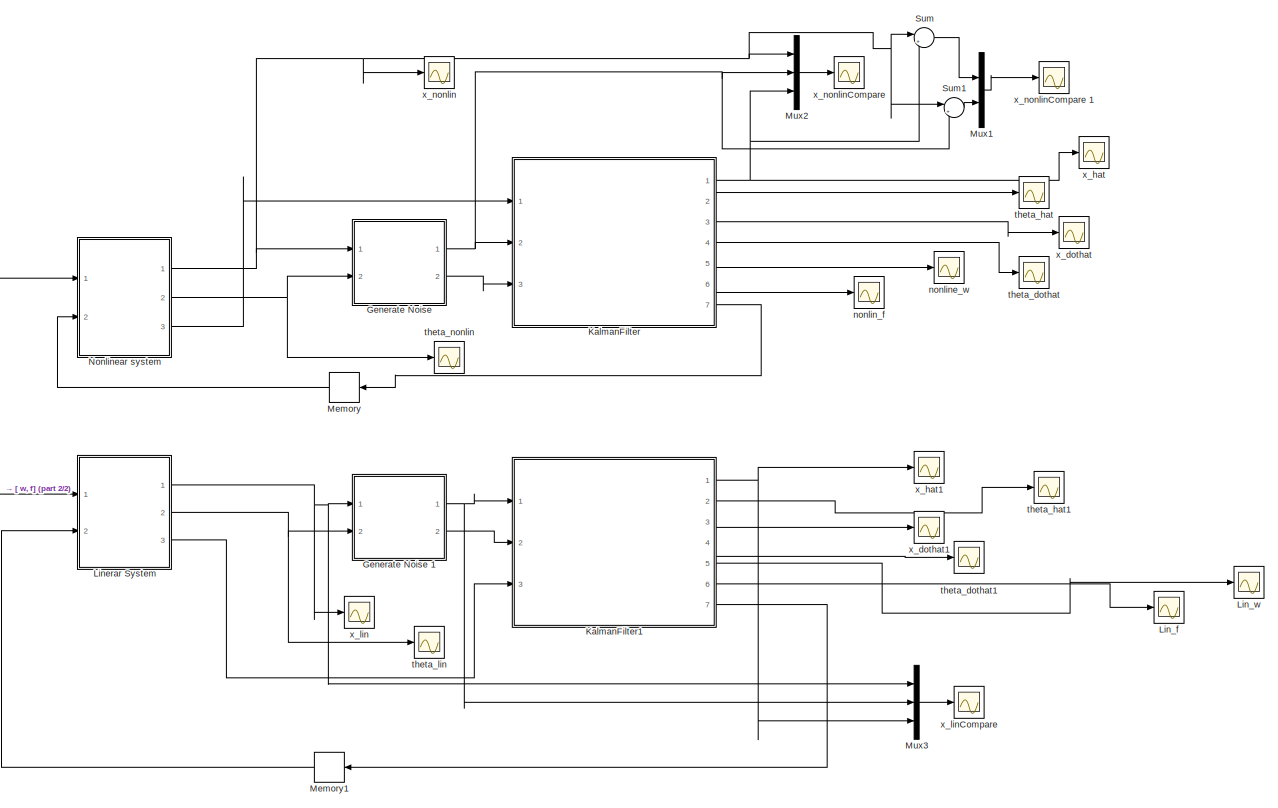
[diagram: root canvas - part 1/2, center side, full height]
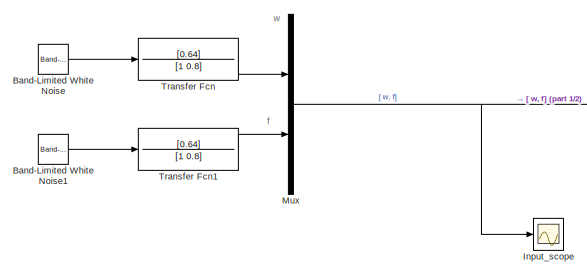
[diagram: root canvas - part 2/2, middle left region]
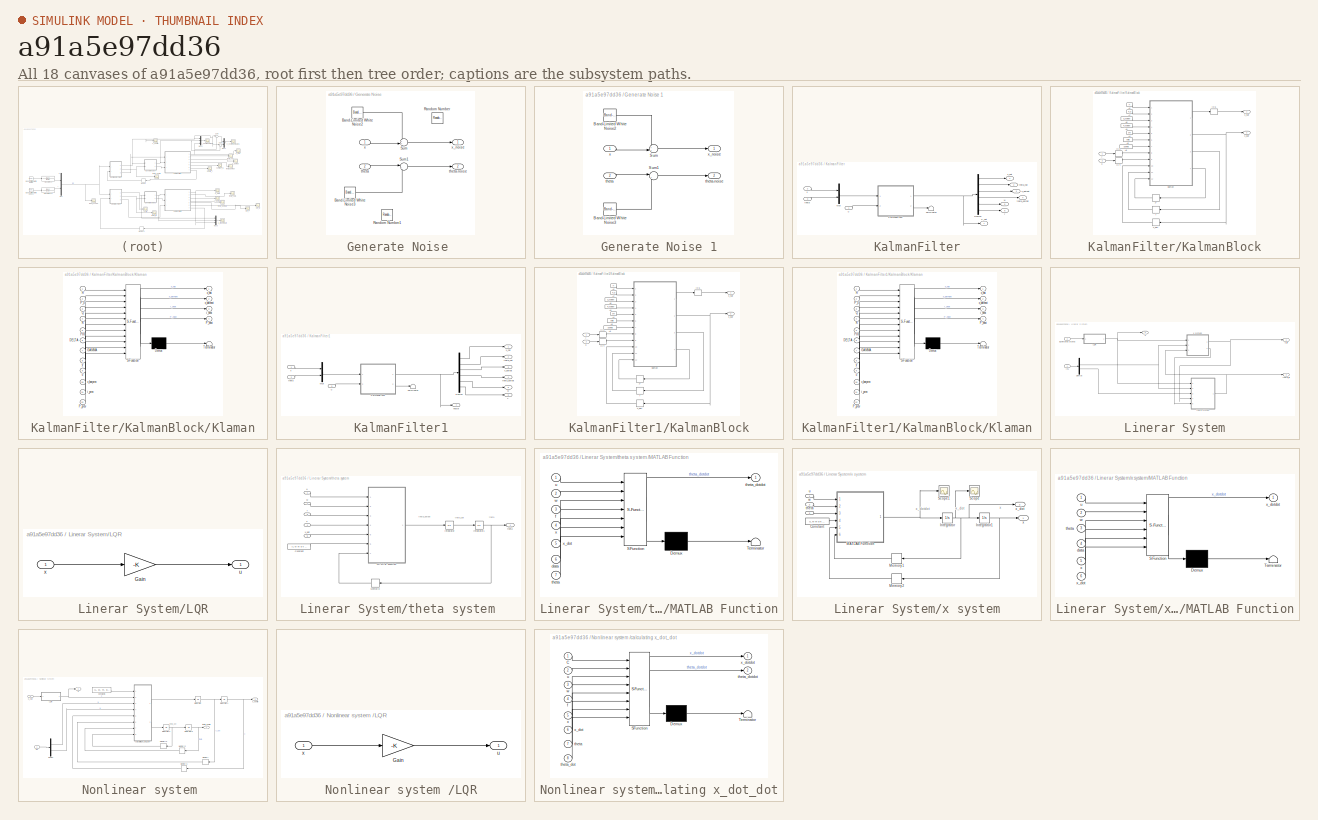
[diagram: thumbnail index - all 18 canvases of the model, root first then tree order]
MODEL slx_a91a5e97dd36
KIND model
CONFIG AbsTol = auto
CONFIG FixedStep = h
CONFIG MaxStep = auto
CONFIG MinStep = auto
CONFIG RelTol = 1e-3
CONFIG SampleTimeConstraint = Unconstrained
CONFIG Solver = ode3
CONFIG SolverMode = Auto
CONFIG SolverName = ode3
CONFIG StartTime = 0.0
CONFIG StopTime = T_max
BLOCK [Reference] Band-Limited White Noise  REF=simulink/Sources/Band-Limited
White Noise
  Cov = [10]
  Ports = [0, 1]
  SourceBlock = simulink/Sources/Band-Limited\nWhite Noise
  SourceType = Band-Limited White Noise.
  Ts = h
  VectorParams1D = on
  seed = [23343]
BLOCK [Reference] Band-Limited White Noise1  REF=simulink/Sources/Band-Limited
White Noise
  Cov = [10e-4]
  Ports = [0, 1]
  SourceBlock = simulink/Sources/Band-Limited\nWhite Noise
  SourceType = Band-Limited White Noise.
  Ts = h
  VectorParams1D = on
  seed = [23344]
BLOCK [SubSystem] Generate Noise 
  Ports = [2, 2]
  RequestExecContextInheritance = off
BLOCK [Reference] Generate Noise /Band-Limited White Noise2  REF=simulink/Sources/Band-Limited
White Noise
  Cov = [10e-7]
  Ports = [0, 1]
  SourceBlock = simulink/Sources/Band-Limited\nWhite Noise
  SourceType = Band-Limited White Noise.
  Ts = h
  VectorParams1D = on
  seed = [23342]
BLOCK [Reference] Generate Noise /Band-Limited White Noise3  REF=simulink/Sources/Band-Limited
White Noise
  Cov = [10e-7]
  Ports = [0, 1]
  SourceBlock = simulink/Sources/Band-Limited\nWhite Noise
  SourceType = Band-Limited White Noise.
  Ts = h
  VectorParams1D = on
  seed = [23341]
BLOCK [RandomNumber] Generate Noise /Random Number
  SampleTime = h
  Variance = 10e-7
BLOCK [RandomNumber] Generate Noise /Random Number1
  SampleTime = h
  Variance = 10e-7
BLOCK [Sum] Generate Noise /Sum
  IconShape = round
  InputSameDT = off
  Inputs = ++|
  OutDataTypeStr = Inherit: Inherit via internal rule
  Ports = [2, 1]
  SaturateOnIntegerOverflow = off
BLOCK [Sum] Generate Noise /Sum1
  IconShape = round
  InputSameDT = off
  Inputs = |++
  OutDataTypeStr = Inherit: Inherit via internal rule
  Ports = [2, 1]
  SaturateOnIntegerOverflow = off
BLOCK [Inport] Generate Noise /theta
  IconDisplay = Port number
  Port = 2
BLOCK [Outport] Generate Noise /theta-noise
  IconDisplay = Port number
  Port = 2
BLOCK [Inport] Generate Noise /x
  IconDisplay = Port number
BLOCK [Outport] Generate Noise /x_noise
  IconDisplay = Port number
BLOCK [SubSystem] Generate Noise 1
  Ports = [2, 2]
  RequestExecContextInheritance = off
BLOCK [Reference] Generate Noise 1/Band-Limited White Noise2  REF=simulink/Sources/Band-Limited
White Noise
  Cov = [10e-7]
  Ports = [0, 1]
  SourceBlock = simulink/Sources/Band-Limited\nWhite Noise
  SourceType = Band-Limited White Noise.
  Ts = h
  VectorParams1D = on
  seed = [23342]
BLOCK [Reference] Generate Noise 1/Band-Limited White Noise3  REF=simulink/Sources/Band-Limited
White Noise
  Cov = [10e-7]
  Ports = [0, 1]
  SourceBlock = simulink/Sources/Band-Limited\nWhite Noise
  SourceType = Band-Limited White Noise.
  Ts = h
  VectorParams1D = on
  seed = [23341]
BLOCK [Sum] Generate Noise 1/Sum
  IconShape = round
  InputSameDT = off
  Inputs = ++|
  OutDataTypeStr = Inherit: Inherit via internal rule
  Ports = [2, 1]
  SaturateOnIntegerOverflow = off
BLOCK [Sum] Generate Noise 1/Sum1
  IconShape = round
  InputSameDT = off
  Inputs = |++
  OutDataTypeStr = Inherit: Inherit via internal rule
  Ports = [2, 1]
  SaturateOnIntegerOverflow = off
BLOCK [Inport] Generate Noise 1/theta
  IconDisplay = Port number
  Port = 2
BLOCK [Outport] Generate Noise 1/theta-noise
  IconDisplay = Port number
  Port = 2
BLOCK [Inport] Generate Noise 1/x
  IconDisplay = Port number
BLOCK [Outport] Generate Noise 1/x_noise
  IconDisplay = Port number
BLOCK [Scope] Input_scope
  Floating = off
  LimitDataPoints = off
  NumInputPorts = 1
  Ports = [1]
  SaveName = ScopeData4
  ShowLegends = off
  YMax = 3
  YMin = -4
BLOCK [SubSystem] KalmanFilter
  Ports = [3, 7]
  RequestExecContextInheritance = off
BLOCK [Demux] KalmanFilter/Demux
  DisplayOption = bar
  Outputs = 6
  Ports = [1, 6]
BLOCK [SubSystem] KalmanFilter/KalmanBlock
  Ports = [2, 2]
  RequestExecContextInheritance = off
BLOCK [Constant] KalmanFilter/KalmanBlock/A2
  Value = H
BLOCK [Constant] KalmanFilter/KalmanBlock/A4
  Value = phi
BLOCK [Constant] KalmanFilter/KalmanBlock/A5
  Value = delta
BLOCK [Constant] KalmanFilter/KalmanBlock/A6
  Value = gamma
BLOCK [Constant] KalmanFilter/KalmanBlock/A7
  Value = P_0
BLOCK [Constant] KalmanFilter/KalmanBlock/A8
  Value = Q_kalman
BLOCK [Constant] KalmanFilter/KalmanBlock/A9
  Value = R_kalman
BLOCK [InitialCondition] KalmanFilter/KalmanBlock/IC3
  Value = y_0
BLOCK [InitialCondition] KalmanFilter/KalmanBlock/IC4
  Value = 0
BLOCK [InitialCondition] KalmanFilter/KalmanBlock/IC5
  Value = X_0
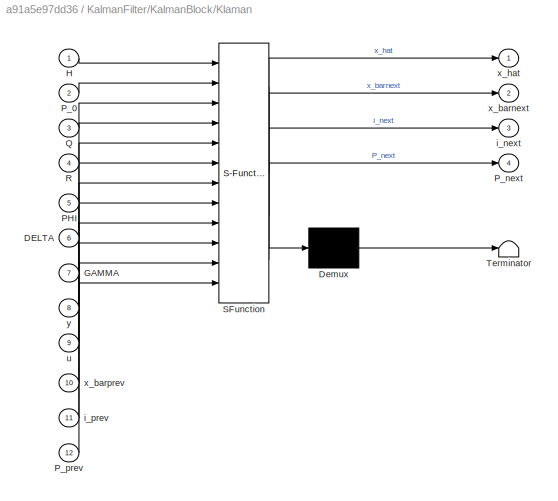
BLOCK [SubSystem] KalmanFilter/KalmanBlock/Klaman
  ErrorFcn = Stateflow.Translate.translate
  PermitHierarchicalResolution = ExplicitOnly
  Ports = [12, 4]
  RequestExecContextInheritance = off
  SFBlockType = MATLAB Function
  TreatAsAtomicUnit = on
BLOCK [Demux] KalmanFilter/KalmanBlock/Klaman/ Demux 
  Outputs = 1
  Ports = [1, 1]
BLOCK [S-Function] KalmanFilter/KalmanBlock/Klaman/ SFunction 
  EnableBusSupport = on
  FunctionName = sf_sfun
  PortCounts = [12 5]
  Ports = [12, 5]
  Tag = Stateflow S-Function Model 2
BLOCK [Terminator] KalmanFilter/KalmanBlock/Klaman/ Terminator 
BLOCK [Inport] KalmanFilter/KalmanBlock/Klaman/DELTA
  IconDisplay = Port number
  Port = 6
BLOCK [Inport] KalmanFilter/KalmanBlock/Klaman/GAMMA
  IconDisplay = Port number
  Port = 7
BLOCK [Inport] KalmanFilter/KalmanBlock/Klaman/H
  IconDisplay = Port number
BLOCK [Inport] KalmanFilter/KalmanBlock/Klaman/PHI
  IconDisplay = Port number
  Port = 5
BLOCK [Inport] KalmanFilter/KalmanBlock/Klaman/P_0
  IconDisplay = Port number
  Port = 2
BLOCK [Outport] KalmanFilter/KalmanBlock/Klaman/P_next
  IconDisplay = Port number
  Port = 4
BLOCK [Inport] KalmanFilter/KalmanBlock/Klaman/P_prev
  IconDisplay = Port number
  Port = 12
BLOCK [Inport] KalmanFilter/KalmanBlock/Klaman/Q
  IconDisplay = Port number
  Port = 3
BLOCK [Inport] KalmanFilter/KalmanBlock/Klaman/R
  IconDisplay = Port number
  Port = 4
BLOCK [Outport] KalmanFilter/KalmanBlock/Klaman/i_next
  IconDisplay = Port number
  Port = 3
BLOCK [Inport] KalmanFilter/KalmanBlock/Klaman/i_prev
  IconDisplay = Port number
  Port = 11
BLOCK [Inport] KalmanFilter/KalmanBlock/Klaman/u
  IconDisplay = Port number
  Port = 9
BLOCK [Outport] KalmanFilter/KalmanBlock/Klaman/x_barnext
  IconDisplay = Port number
  Port = 2
BLOCK [Inport] KalmanFilter/KalmanBlock/Klaman/x_barprev
  IconDisplay = Port number
  Port = 10
BLOCK [Outport] KalmanFilter/KalmanBlock/Klaman/x_hat
  IconDisplay = Port number
BLOCK [Inport] KalmanFilter/KalmanBlock/Klaman/y
  IconDisplay = Port number
  Port = 8
BLOCK [Memory] KalmanFilter/KalmanBlock/P
  X0 = P_0
BLOCK [Memory] KalmanFilter/KalmanBlock/i 
BLOCK [Inport] KalmanFilter/KalmanBlock/u 
  IconDisplay = Port number
  Port = 2
BLOCK [Outport] KalmanFilter/KalmanBlock/x_bar
  IconDisplay = Port number
  Port = 2
BLOCK [Memory] KalmanFilter/KalmanBlock/x_bar'
  X0 = X_0
BLOCK [Outport] KalmanFilter/KalmanBlock/x_hat
  IconDisplay = Port number
BLOCK [Inport] KalmanFilter/KalmanBlock/y 
  IconDisplay = Port number
BLOCK [Mux] KalmanFilter/Mux
  DisplayOption = bar
  Inputs = 2
  Ports = [2, 1]
BLOCK [Terminator] KalmanFilter/Terminator
BLOCK [Outport] KalmanFilter/X_hat
  IconDisplay = Port number
  Port = 7
BLOCK [Outport] KalmanFilter/f
  IconDisplay = Port number
  Port = 6
BLOCK [Inport] KalmanFilter/theta
  IconDisplay = Port number
  Port = 3
BLOCK [Outport] KalmanFilter/theta_dothat
  IconDisplay = Port number
  Port = 4
BLOCK [Outport] KalmanFilter/theta_hat
  IconDisplay = Port number
  Port = 2
BLOCK [Inport] KalmanFilter/u 
  IconDisplay = Port number
BLOCK [Outport] KalmanFilter/w
  IconDisplay = Port number
  Port = 5
BLOCK [Inport] KalmanFilter/x
  IconDisplay = Port number
  Port = 2
BLOCK [Outport] KalmanFilter/x_dothat
  IconDisplay = Port number
  Port = 3
BLOCK [Outport] KalmanFilter/x_hat
  IconDisplay = Port number
BLOCK [SubSystem] KalmanFilter1
  Ports = [3, 7]
  RequestExecContextInheritance = off
BLOCK [Demux] KalmanFilter1/Demux
  DisplayOption = bar
  Outputs = 6
  Ports = [1, 6]
BLOCK [SubSystem] KalmanFilter1/KalmanBlock
  Ports = [2, 2]
  RequestExecContextInheritance = off
BLOCK [Constant] KalmanFilter1/KalmanBlock/A2
  Value = H
BLOCK [Constant] KalmanFilter1/KalmanBlock/A4
  Value = phi
BLOCK [Constant] KalmanFilter1/KalmanBlock/A5
  Value = delta
BLOCK [Constant] KalmanFilter1/KalmanBlock/A6
  Value = gamma
BLOCK [Constant] KalmanFilter1/KalmanBlock/A7
  Value = P_0
BLOCK [Constant] KalmanFilter1/KalmanBlock/A8
  Value = Q_kalman
BLOCK [Constant] KalmanFilter1/KalmanBlock/A9
  Value = R_kalman
BLOCK [InitialCondition] KalmanFilter1/KalmanBlock/IC3
  Value = y_0
BLOCK [InitialCondition] KalmanFilter1/KalmanBlock/IC4
  Value = 0
BLOCK [InitialCondition] KalmanFilter1/KalmanBlock/IC5
  Value = X_0
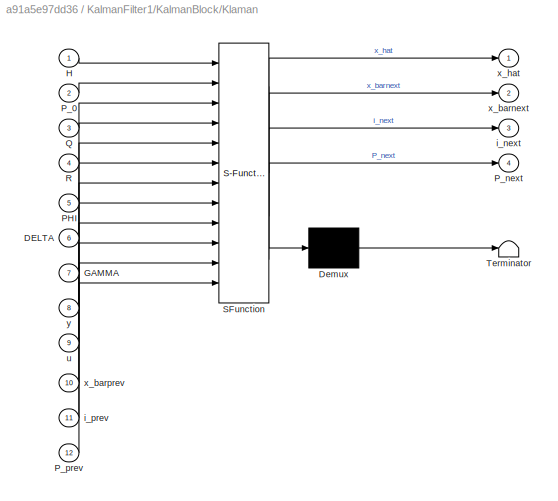
BLOCK [SubSystem] KalmanFilter1/KalmanBlock/Klaman
  ErrorFcn = Stateflow.Translate.translate
  PermitHierarchicalResolution = ExplicitOnly
  Ports = [12, 4]
  RequestExecContextInheritance = off
  SFBlockType = MATLAB Function
  TreatAsAtomicUnit = on
BLOCK [Demux] KalmanFilter1/KalmanBlock/Klaman/ Demux 
  Outputs = 1
  Ports = [1, 1]
BLOCK [S-Function] KalmanFilter1/KalmanBlock/Klaman/ SFunction 
  EnableBusSupport = on
  FunctionName = sf_sfun
  PortCounts = [12 5]
  Ports = [12, 5]
  Tag = Stateflow S-Function Model 5
BLOCK [Terminator] KalmanFilter1/KalmanBlock/Klaman/ Terminator 
BLOCK [Inport] KalmanFilter1/KalmanBlock/Klaman/DELTA
  IconDisplay = Port number
  Port = 6
BLOCK [Inport] KalmanFilter1/KalmanBlock/Klaman/GAMMA
  IconDisplay = Port number
  Port = 7
BLOCK [Inport] KalmanFilter1/KalmanBlock/Klaman/H
  IconDisplay = Port number
BLOCK [Inport] KalmanFilter1/KalmanBlock/Klaman/PHI
  IconDisplay = Port number
  Port = 5
BLOCK [Inport] KalmanFilter1/KalmanBlock/Klaman/P_0
  IconDisplay = Port number
  Port = 2
BLOCK [Outport] KalmanFilter1/KalmanBlock/Klaman/P_next
  IconDisplay = Port number
  Port = 4
BLOCK [Inport] KalmanFilter1/KalmanBlock/Klaman/P_prev
  IconDisplay = Port number
  Port = 12
BLOCK [Inport] KalmanFilter1/KalmanBlock/Klaman/Q
  IconDisplay = Port number
  Port = 3
BLOCK [Inport] KalmanFilter1/KalmanBlock/Klaman/R
  IconDisplay = Port number
  Port = 4
BLOCK [Outport] KalmanFilter1/KalmanBlock/Klaman/i_next
  IconDisplay = Port number
  Port = 3
BLOCK [Inport] KalmanFilter1/KalmanBlock/Klaman/i_prev
  IconDisplay = Port number
  Port = 11
BLOCK [Inport] KalmanFilter1/KalmanBlock/Klaman/u
  IconDisplay = Port number
  Port = 9
BLOCK [Outport] KalmanFilter1/KalmanBlock/Klaman/x_barnext
  IconDisplay = Port number
  Port = 2
BLOCK [Inport] KalmanFilter1/KalmanBlock/Klaman/x_barprev
  IconDisplay = Port number
  Port = 10
BLOCK [Outport] KalmanFilter1/KalmanBlock/Klaman/x_hat
  IconDisplay = Port number
BLOCK [Inport] KalmanFilter1/KalmanBlock/Klaman/y
  IconDisplay = Port number
  Port = 8
BLOCK [Memory] KalmanFilter1/KalmanBlock/P
  X0 = P_0
BLOCK [Memory] KalmanFilter1/KalmanBlock/i 
BLOCK [Inport] KalmanFilter1/KalmanBlock/u 
  IconDisplay = Port number
  Port = 2
BLOCK [Outport] KalmanFilter1/KalmanBlock/x_bar
  IconDisplay = Port number
  Port = 2
BLOCK [Memory] KalmanFilter1/KalmanBlock/x_bar'
  X0 = X_0
BLOCK [Outport] KalmanFilter1/KalmanBlock/x_hat
  IconDisplay = Port number
BLOCK [Inport] KalmanFilter1/KalmanBlock/y 
  IconDisplay = Port number
BLOCK [Mux] KalmanFilter1/Mux
  DisplayOption = bar
  Inputs = 2
  Ports = [2, 1]
BLOCK [Terminator] KalmanFilter1/Terminator
BLOCK [Outport] KalmanFilter1/f'
  IconDisplay = Port number
  Port = 6
BLOCK [Inport] KalmanFilter1/theta
  IconDisplay = Port number
  Port = 2
BLOCK [Outport] KalmanFilter1/theta_dothat
  IconDisplay = Port number
  Port = 4
BLOCK [Outport] KalmanFilter1/theta_hat
  IconDisplay = Port number
  Port = 2
BLOCK [Inport] KalmanFilter1/u 
  IconDisplay = Port number
  Port = 3
BLOCK [Outport] KalmanFilter1/vector
  IconDisplay = Port number
  Port = 7
BLOCK [Outport] KalmanFilter1/w
  IconDisplay = Port number
  Port = 5
BLOCK [Inport] KalmanFilter1/x
  IconDisplay = Port number
BLOCK [Outport] KalmanFilter1/x_dothat
  IconDisplay = Port number
  Port = 3
BLOCK [Outport] KalmanFilter1/x_hat
  IconDisplay = Port number
BLOCK [Scope] Lin_f
  Floating = off
  LimitDataPoints = off
  NumInputPorts = 1
  Ports = [1]
  SaveName = ScopeData9
  ShowLegends = off
BLOCK [Scope] Lin_w
  Floating = off
  LimitDataPoints = off
  NumInputPorts = 1
  Ports = [1]
  SaveName = ScopeData10
  ShowLegends = off
BLOCK [SubSystem] Linerar System
  Ports = [2, 3]
  RequestExecContextInheritance = off
BLOCK [Demux] Linerar System/Demux
  DisplayOption = bar
  Outputs = 2
  Ports = [1, 2]
BLOCK [Inport] Linerar System/Estimated states
  IconDisplay = Port number
  Port = 2
BLOCK [Inport] Linerar System/In1
  IconDisplay = Port number
BLOCK [SubSystem] Linerar System/LQR
  Ports = [1, 1]
  RequestExecContextInheritance = off
BLOCK [Gain] Linerar System/LQR/Gain
  Gain = -K
  Multiplication = Matrix(K*u)
  OutDataTypeStr = Inherit: Inherit via internal rule
  ParamDataTypeStr = Inherit: Inherit via internal rule
  SaturateOnIntegerOverflow = off
BLOCK [Outport] Linerar System/LQR/u
  IconDisplay = Port number
BLOCK [Inport] Linerar System/LQR/x
  IconDisplay = Port number
BLOCK [SubSystem] Linerar System/theta system 
  Ports = [5, 1]
  RequestExecContextInheritance = off
BLOCK [Constant] Linerar System/theta system /Constant
  SampleTime = 0.01
  Value = [L M m b k g]
  VectorParams1D = off
BLOCK [Integrator] Linerar System/theta system /Integrator
  Ports = [1, 1]
BLOCK [Integrator] Linerar System/theta system /Integrator1
  Ports = [1, 1]
BLOCK [SubSystem] Linerar System/theta system /MATLAB Function
  ErrorFcn = Stateflow.Translate.translate
  PermitHierarchicalResolution = ExplicitOnly
  Ports = [7, 1]
  RequestExecContextInheritance = off
  SFBlockType = MATLAB Function
  TreatAsAtomicUnit = on
BLOCK [Demux] Linerar System/theta system /MATLAB Function/ Demux 
  Outputs = 1
  Ports = [1, 1]
BLOCK [S-Function] Linerar System/theta system /MATLAB Function/ SFunction 
  EnableBusSupport = on
  FunctionName = sf_sfun
  PortCounts = [7 2]
  Ports = [7, 2]
  Tag = Stateflow S-Function Model 3
BLOCK [Terminator] Linerar System/theta system /MATLAB Function/ Terminator 
BLOCK [Inport] Linerar System/theta system /MATLAB Function/data
  IconDisplay = Port number
  Port = 6
BLOCK [Inport] Linerar System/theta system /MATLAB Function/f
  IconDisplay = Port number
  Port = 3
BLOCK [Inport] Linerar System/theta system /MATLAB Function/theta
  IconDisplay = Port number
  Port = 7
BLOCK [Outport] Linerar System/theta system /MATLAB Function/theta_dotdot
  IconDisplay = Port number
BLOCK [Inport] Linerar System/theta system /MATLAB Function/u
  IconDisplay = Port number
BLOCK [Inport] Linerar System/theta system /MATLAB Function/w
  IconDisplay = Port number
  Port = 2
BLOCK [Inport] Linerar System/theta system /MATLAB Function/x
  IconDisplay = Port number
  Port = 4
BLOCK [Inport] Linerar System/theta system /MATLAB Function/x_dot
  IconDisplay = Port number
  Port = 5
BLOCK [Memory] Linerar System/theta system /Memory2
  X0 = theta_0
BLOCK [Inport] Linerar System/theta system /f
  IconDisplay = Port number
  Port = 3
BLOCK [Outport] Linerar System/theta system /theta
  IconDisplay = Port number
BLOCK [Inport] Linerar System/theta system /u 
  IconDisplay = Port number
BLOCK [Inport] Linerar System/theta system /w
  IconDisplay = Port number
  Port = 2
BLOCK [Inport] Linerar System/theta system /x
  IconDisplay = Port number
  Port = 4
BLOCK [Inport] Linerar System/theta system /x_dot
  IconDisplay = Port number
  Port = 5
BLOCK [Outport] Linerar System/theta_lin
  IconDisplay = Port number
  Port = 2
BLOCK [Outport] Linerar System/u
  IconDisplay = Port number
  Port = 3
BLOCK [SubSystem] Linerar System/x system
  Ports = [3, 2]
  RequestExecContextInheritance = off
BLOCK [Constant] Linerar System/x system/Constant
  SampleTime = 0.01
  Value = [L M m b k g]
  VectorParams1D = off
BLOCK [Integrator] Linerar System/x system/Integrator
  Ports = [1, 1]
BLOCK [Integrator] Linerar System/x system/Integrator1
  Ports = [1, 1]
BLOCK [SubSystem] Linerar System/x system/MATLAB Function
  ErrorFcn = Stateflow.Translate.translate
  PermitHierarchicalResolution = ExplicitOnly
  Ports = [6, 1]
  RequestExecContextInheritance = off
  SFBlockType = MATLAB Function
  TreatAsAtomicUnit = on
BLOCK [Demux] Linerar System/x system/MATLAB Function/ Demux 
  Outputs = 1
  Ports = [1, 1]
BLOCK [S-Function] Linerar System/x system/MATLAB Function/ SFunction 
  EnableBusSupport = on
  FunctionName = sf_sfun
  PortCounts = [6 2]
  Ports = [6, 2]
  Tag = Stateflow S-Function Model 1
BLOCK [Terminator] Linerar System/x system/MATLAB Function/ Terminator 
BLOCK [Inport] Linerar System/x system/MATLAB Function/data
  IconDisplay = Port number
  Port = 4
BLOCK [Inport] Linerar System/x system/MATLAB Function/theta
  IconDisplay = Port number
  Port = 3
BLOCK [Inport] Linerar System/x system/MATLAB Function/u
  IconDisplay = Port number
BLOCK [Inport] Linerar System/x system/MATLAB Function/w
  IconDisplay = Port number
  Port = 2
BLOCK [Inport] Linerar System/x system/MATLAB Function/x
  IconDisplay = Port number
  Port = 5
BLOCK [Inport] Linerar System/x system/MATLAB Function/x_dot
  IconDisplay = Port number
  Port = 6
BLOCK [Outport] Linerar System/x system/MATLAB Function/x_dotdot
  IconDisplay = Port number
BLOCK [Memory] Linerar System/x system/Memory1
  X0 = x_dot0
BLOCK [Memory] Linerar System/x system/Memory2
  X0 = x_0
BLOCK [Scope] Linerar System/x system/Scope
  Floating = off
  NumInputPorts = 1
  Ports = [1]
  ShowLegends = off
BLOCK [Scope] Linerar System/x system/Scope1
  Floating = off
  NumInputPorts = 1
  Ports = [1]
  ShowLegends = off
BLOCK [Inport] Linerar System/x system/theta
  IconDisplay = Port number
  Port = 3
BLOCK [Inport] Linerar System/x system/u 
  IconDisplay = Port number
BLOCK [Inport] Linerar System/x system/w
  IconDisplay = Port number
  Port = 2
BLOCK [Outport] Linerar System/x system/x
  IconDisplay = Port number
BLOCK [Outport] Linerar System/x system/x_dot
  IconDisplay = Port number
  Port = 2
BLOCK [Outport] Linerar System/x_lin
  IconDisplay = Port number
BLOCK [Memory] Memory
  X0 = X_0
BLOCK [Memory] Memory1
  X0 = X_0
BLOCK [Mux] Mux
  DisplayOption = bar
  Inputs = 2
  Ports = [2, 1]
BLOCK [Mux] Mux1
  DisplayOption = bar
  Inputs = 2
  Ports = [2, 1]
BLOCK [Mux] Mux2
  DisplayOption = bar
  Inputs = 3
  Ports = [3, 1]
BLOCK [Mux] Mux3
  DisplayOption = bar
  Inputs = 3
  Ports = [3, 1]
BLOCK [SubSystem] Nonlinear system 
  Ports = [2, 3]
  RequestExecContextInheritance = off
BLOCK [Constant] Nonlinear system /Constant1
  SampleTime = 0.01
  Value = [L, M, m, b, k, g]
BLOCK [Demux] Nonlinear system /Demux
  DisplayOption = bar
  Outputs = 2
  Ports = [1, 2]
BLOCK [Inport] Nonlinear system /In1
  IconDisplay = Port number
BLOCK [Integrator] Nonlinear system /Integrator
  Ports = [1, 1]
BLOCK [Integrator] Nonlinear system /Integrator1
  Ports = [1, 1]
BLOCK [Integrator] Nonlinear system /Integrator4
  Ports = [1, 1]
BLOCK [Integrator] Nonlinear system /Integrator5
  Ports = [1, 1]
BLOCK [SubSystem] Nonlinear system /LQR
  Ports = [1, 1]
  RequestExecContextInheritance = off
BLOCK [Gain] Nonlinear system /LQR/Gain
  Gain = -K
  Multiplication = Matrix(K*u)
  OutDataTypeStr = Inherit: Inherit via internal rule
  ParamDataTypeStr = Inherit: Inherit via internal rule
  SaturateOnIntegerOverflow = off
BLOCK [Outport] Nonlinear system /LQR/u
  IconDisplay = Port number
BLOCK [Inport] Nonlinear system /LQR/x
  IconDisplay = Port number
BLOCK [Memory] Nonlinear system /Memory
  X0 = x_dot0
BLOCK [Memory] Nonlinear system /Memory1
  X0 = x_0
BLOCK [Memory] Nonlinear system /Memory2
  X0 = theta_0
BLOCK [Memory] Nonlinear system /Memory3
  X0 = theta_dot0
BLOCK [SubSystem] Nonlinear system /calculating x_dot_dot
  ErrorFcn = Stateflow.Translate.translate
  PermitHierarchicalResolution = ExplicitOnly
  Ports = [8, 2]
  RequestExecContextInheritance = off
  SFBlockType = MATLAB Function
  TreatAsAtomicUnit = on
BLOCK [Demux] Nonlinear system /calculating x_dot_dot/ Demux 
  Outputs = 1
  Ports = [1, 1]
BLOCK [S-Function] Nonlinear system /calculating x_dot_dot/ SFunction 
  EnableBusSupport = on
  FunctionName = sf_sfun
  PortCounts = [8 3]
  Ports = [8, 3]
  Tag = Stateflow S-Function Model 4
BLOCK [Terminator] Nonlinear system /calculating x_dot_dot/ Terminator 
BLOCK [Inport] Nonlinear system /calculating x_dot_dot/C
  IconDisplay = Port number
BLOCK [Inport] Nonlinear system /calculating x_dot_dot/f
  IconDisplay = Port number
  Port = 4
BLOCK [Inport] Nonlinear system /calculating x_dot_dot/theta
  IconDisplay = Port number
  Port = 7
BLOCK [Inport] Nonlinear system /calculating x_dot_dot/theta_dot
  IconDisplay = Port number
  Port = 8
BLOCK [Outport] Nonlinear system /calculating x_dot_dot/theta_dotdot
  IconDisplay = Port number
  Port = 2
BLOCK [Inport] Nonlinear system /calculating x_dot_dot/u
  IconDisplay = Port number
  Port = 2
BLOCK [Inport] Nonlinear system /calculating x_dot_dot/w
  IconDisplay = Port number
  Port = 3
BLOCK [Inport] Nonlinear system /calculating x_dot_dot/x
  IconDisplay = Port number
  Port = 5
BLOCK [Inport] Nonlinear system /calculating x_dot_dot/x_dot
  IconDisplay = Port number
  Port = 6
BLOCK [Outport] Nonlinear system /calculating x_dot_dot/x_dotdot
  IconDisplay = Port number
BLOCK [Outport] Nonlinear system /theta_nonlin
  IconDisplay = Port number
  Port = 2
BLOCK [Outport] Nonlinear system /u
  IconDisplay = Port number
  Port = 3
BLOCK [Inport] Nonlinear system /x_hat
  IconDisplay = Port number
  Port = 2
BLOCK [Outport] Nonlinear system /x_nonlin
  IconDisplay = Port number
BLOCK [Sum] Sum
  IconShape = round
  InputSameDT = off
  Inputs = |+-
  OutDataTypeStr = Inherit: Inherit via internal rule
  Ports = [2, 1]
  SaturateOnIntegerOverflow = off
BLOCK [Sum] Sum1
  IconShape = round
  InputSameDT = off
  Inputs = |+-
  OutDataTypeStr = Inherit: Inherit via internal rule
  Ports = [2, 1]
  SaturateOnIntegerOverflow = off
BLOCK [TransferFcn] Transfer Fcn
  Commented = through
  Denominator = [1 0.8]
  Numerator = [0.64]
BLOCK [TransferFcn] Transfer Fcn1
  Commented = through
  Denominator = [1 0.8]
  Numerator = [0.64]
BLOCK [Scope] nonlin_f
  Floating = off
  LimitDataPoints = off
  NumInputPorts = 1
  Ports = [1]
  SaveName = ScopeData8
  ShowLegends = off
BLOCK [Scope] nonline_w
  Floating = off
  LimitDataPoints = off
  NumInputPorts = 1
  Ports = [1]
  SaveName = ScopeData7
  ShowLegends = off
BLOCK [Scope] theta_dothat
  Floating = off
  LimitDataPoints = off
  NumInputPorts = 1
  Ports = [1]
  ShowLegends = off
BLOCK [Scope] theta_dothat1
  Floating = off
  LimitDataPoints = off
  NumInputPorts = 1
  Ports = [1]
  ShowLegends = off
BLOCK [Scope] theta_hat
  Floating = off
  LimitDataPoints = off
  NumInputPorts = 1
  Ports = [1]
  ShowLegends = off
BLOCK [Scope] theta_hat1
  Floating = off
  LimitDataPoints = off
  NumInputPorts = 1
  Ports = [1]
  ShowLegends = off
BLOCK [Scope] theta_lin
  DataFormat = StructureWithTime
  Floating = off
  LimitDataPoints = off
  NumInputPorts = 1
  Ports = [1]
  SaveName = ScopeData2
  ShowLegends = off
  YMax = 25353039785693015000000000000000000000000000000000000000000000000000000000000000000000000000000000000000000000000000000000000000000000000000000000000000000000000000000000000000000000000000000000000000000000000000000000000000000000000000000000000000000000000000000000000000000000000000000000000000000000000.00000
  YMin = -228177358071237180000000000000000000000000000000000000000000000000000000000000000000000000000000000000000000000000000000000000000000000000000000000000000000000000000000000000000000000000000000000000000000000000000000000000000000000000000000000000000000000000000000000000000000000000000000000000000000000000.00000
BLOCK [Scope] theta_nonlin 
  DataFormat = StructureWithTime
  Floating = off
  LimitDataPoints = off
  NumInputPorts = 1
  Ports = [1]
  SaveName = ScopeData3
  ShowLegends = off
  YMax = 0.15685
  YMin = -0.04693
BLOCK [Scope] x_dothat
  Floating = off
  LimitDataPoints = off
  NumInputPorts = 1
  Ports = [1]
  ShowLegends = off
BLOCK [Scope] x_dothat1
  Floating = off
  LimitDataPoints = off
  NumInputPorts = 1
  Ports = [1]
  ShowLegends = off
BLOCK [Scope] x_hat
  Floating = off
  LimitDataPoints = off
  NumInputPorts = 1
  Ports = [1]
  ShowLegends = off
  YMax = 1
  YMin = -1
BLOCK [Scope] x_hat1
  Floating = off
  LimitDataPoints = off
  NumInputPorts = 1
  Ports = [1]
  ShowLegends = off
BLOCK [Scope] x_lin
  DataFormat = StructureWithTime
  Floating = off
  LimitDataPoints = off
  NumInputPorts = 1
  Ports = [1]
  SaveName = ScopeData1
  ShowLegends = off
  YMax = 0.5
  YMin = -0.5
  ZoomMode = yonly
BLOCK [Scope] x_linCompare
  DataFormat = StructureWithTime
  Floating = off
  LegendLocations = 0.8607     0.86503     0.11115    0.071054
  LimitDataPoints = off
  NumInputPorts = 1
  Ports = [1]
  SaveName = ScopeData6
  ShowLegends = on
  YMax = 4
  YMin = -3
BLOCK [Scope] x_nonlin
  DataFormat = StructureWithTime
  Floating = off
  LimitDataPoints = off
  NumInputPorts = 1
  Ports = [1]
  ShowLegends = off
  TimeRange = 100
  YMax = 3
  YMin = -4
BLOCK [Scope] x_nonlinCompare 
  DataFormat = StructureWithTime
  Floating = off
  LegendLocations = 0.8761     0.87622    0.079473    0.048661
  LimitDataPoints = off
  NumInputPorts = 1
  Ports = [1]
  SaveName = ScopeData5
  ShowLegends = on
  YMax = 2.5
  YMin = -1.5
BLOCK [Scope] x_nonlinCompare 1
  DataFormat = StructureWithTime
  Floating = off
  LegendLocations = 0.86886     0.87286    0.044133    0.034012
  LimitDataPoints = off
  NumInputPorts = 1
  Ports = [1]
  SaveName = ScopeData11
  ShowLegends = on
  YMax = 0.001
  YMin = -0.0015
  ZoomMode = xonly
ANNOTATION (root): f
ANNOTATION (root): w
ANNOTATION Linerar System/theta system : theta
ANNOTATION Linerar System/theta system : theta_dot
ANNOTATION Linerar System/theta system : theta_dotdot
ANNOTATION Linerar System/x system: x
ANNOTATION Linerar System/x system: x_dot
ANNOTATION Linerar System/x system: x_dotdot
ANNOTATION Nonlinear system : theta_dot
LINE Band-Limited White Noise1:1 -> Transfer Fcn1:1
LINE Band-Limited White Noise:1 -> Transfer Fcn:1
LINE Generate Noise /Band-Limited White Noise2:1 -> Generate Noise /Sum:1
LINE Generate Noise /Band-Limited White Noise3:1 -> Generate Noise /Sum1:2
LINE Generate Noise /Sum1:1 -> Generate Noise /theta-noise:1
LINE Generate Noise /Sum:1 -> Generate Noise /x_noise:1
LINE Generate Noise /theta:1 -> Generate Noise /Sum1:1
LINE Generate Noise /x:1 -> Generate Noise /Sum:2
LINE Generate Noise 1/Band-Limited White Noise2:1 -> Generate Noise 1/Sum:1
LINE Generate Noise 1/Band-Limited White Noise3:1 -> Generate Noise 1/Sum1:2
LINE Generate Noise 1/Sum1:1 -> Generate Noise 1/theta-noise:1
LINE Generate Noise 1/Sum:1 -> Generate Noise 1/x_noise:1
LINE Generate Noise 1/theta:1 -> Generate Noise 1/Sum1:1
LINE Generate Noise 1/x:1 -> Generate Noise 1/Sum:2
NET Generate Noise 1:1 -> KalmanFilter1:1, Mux3:2
LINE Generate Noise 1:2 -> KalmanFilter1:2
NET Generate Noise :1 -> KalmanFilter:2, Mux2:2, Sum1:2
LINE Generate Noise :2 -> KalmanFilter:3
LINE KalmanFilter/Demux:1 -> KalmanFilter/x_hat:1
LINE KalmanFilter/Demux:2 -> KalmanFilter/theta_hat:1
LINE KalmanFilter/Demux:3 -> KalmanFilter/x_dothat:1
LINE KalmanFilter/Demux:4 -> KalmanFilter/theta_dothat:1
LINE KalmanFilter/Demux:5 -> KalmanFilter/w:1
LINE KalmanFilter/Demux:6 -> KalmanFilter/f:1
LINE KalmanFilter/KalmanBlock/A2:1 -> KalmanFilter/KalmanBlock/Klaman:1
LINE KalmanFilter/KalmanBlock/A4:1 -> KalmanFilter/KalmanBlock/Klaman:5
LINE KalmanFilter/KalmanBlock/A5:1 -> KalmanFilter/KalmanBlock/Klaman:6
LINE KalmanFilter/KalmanBlock/A6:1 -> KalmanFilter/KalmanBlock/Klaman:7
LINE KalmanFilter/KalmanBlock/A7:1 -> KalmanFilter/KalmanBlock/Klaman:2
LINE KalmanFilter/KalmanBlock/A8:1 -> KalmanFilter/KalmanBlock/Klaman:3
LINE KalmanFilter/KalmanBlock/A9:1 -> KalmanFilter/KalmanBlock/Klaman:4
LINE KalmanFilter/KalmanBlock/IC3:1 -> KalmanFilter/KalmanBlock/Klaman:8
LINE KalmanFilter/KalmanBlock/IC4:1 -> KalmanFilter/KalmanBlock/Klaman:9
LINE KalmanFilter/KalmanBlock/IC5:1 -> KalmanFilter/KalmanBlock/x_hat:1
LINE KalmanFilter/KalmanBlock/Klaman:1 -> KalmanFilter/KalmanBlock/IC5:1
NET KalmanFilter/KalmanBlock/Klaman:2 -> KalmanFilter/KalmanBlock/x_bar':1, KalmanFilter/KalmanBlock/x_bar:1
LINE KalmanFilter/KalmanBlock/Klaman:3 -> KalmanFilter/KalmanBlock/i :1
LINE KalmanFilter/KalmanBlock/Klaman:4 -> KalmanFilter/KalmanBlock/P:1
LINE KalmanFilter/KalmanBlock/P:1 -> KalmanFilter/KalmanBlock/Klaman:12
LINE KalmanFilter/KalmanBlock/i :1 -> KalmanFilter/KalmanBlock/Klaman:11
LINE KalmanFilter/KalmanBlock/u :1 -> KalmanFilter/KalmanBlock/IC4:1
LINE KalmanFilter/KalmanBlock/x_bar':1 -> KalmanFilter/KalmanBlock/Klaman:10
LINE KalmanFilter/KalmanBlock/y :1 -> KalmanFilter/KalmanBlock/IC3:1
NET KalmanFilter/KalmanBlock:1 -> KalmanFilter/Demux:1, KalmanFilter/X_hat:1
LINE KalmanFilter/KalmanBlock:2 -> KalmanFilter/Terminator:1
LINE KalmanFilter/Mux:1 -> KalmanFilter/KalmanBlock:1
LINE KalmanFilter/theta:1 -> KalmanFilter/Mux:2
LINE KalmanFilter/u :1 -> KalmanFilter/KalmanBlock:2
LINE KalmanFilter/x:1 -> KalmanFilter/Mux:1
LINE KalmanFilter1/Demux:1 -> KalmanFilter1/x_hat:1
LINE KalmanFilter1/Demux:2 -> KalmanFilter1/theta_hat:1
LINE KalmanFilter1/Demux:3 -> KalmanFilter1/x_dothat:1
LINE KalmanFilter1/Demux:4 -> KalmanFilter1/theta_dothat:1
LINE KalmanFilter1/Demux:5 -> KalmanFilter1/w:1
LINE KalmanFilter1/Demux:6 -> KalmanFilter1/f':1
LINE KalmanFilter1/KalmanBlock/A2:1 -> KalmanFilter1/KalmanBlock/Klaman:1
LINE KalmanFilter1/KalmanBlock/A4:1 -> KalmanFilter1/KalmanBlock/Klaman:5
LINE KalmanFilter1/KalmanBlock/A5:1 -> KalmanFilter1/KalmanBlock/Klaman:6
LINE KalmanFilter1/KalmanBlock/A6:1 -> KalmanFilter1/KalmanBlock/Klaman:7
LINE KalmanFilter1/KalmanBlock/A7:1 -> KalmanFilter1/KalmanBlock/Klaman:2
LINE KalmanFilter1/KalmanBlock/A8:1 -> KalmanFilter1/KalmanBlock/Klaman:3
LINE KalmanFilter1/KalmanBlock/A9:1 -> KalmanFilter1/KalmanBlock/Klaman:4
LINE KalmanFilter1/KalmanBlock/IC3:1 -> KalmanFilter1/KalmanBlock/Klaman:8
LINE KalmanFilter1/KalmanBlock/IC4:1 -> KalmanFilter1/KalmanBlock/Klaman:9
LINE KalmanFilter1/KalmanBlock/IC5:1 -> KalmanFilter1/KalmanBlock/x_hat:1
LINE KalmanFilter1/KalmanBlock/Klaman:1 -> KalmanFilter1/KalmanBlock/IC5:1
NET KalmanFilter1/KalmanBlock/Klaman:2 -> KalmanFilter1/KalmanBlock/x_bar':1, KalmanFilter1/KalmanBlock/x_bar:1
LINE KalmanFilter1/KalmanBlock/Klaman:3 -> KalmanFilter1/KalmanBlock/i :1
LINE KalmanFilter1/KalmanBlock/Klaman:4 -> KalmanFilter1/KalmanBlock/P:1
LINE KalmanFilter1/KalmanBlock/P:1 -> KalmanFilter1/KalmanBlock/Klaman:12
LINE KalmanFilter1/KalmanBlock/i :1 -> KalmanFilter1/KalmanBlock/Klaman:11
LINE KalmanFilter1/KalmanBlock/u :1 -> KalmanFilter1/KalmanBlock/IC4:1
LINE KalmanFilter1/KalmanBlock/x_bar':1 -> KalmanFilter1/KalmanBlock/Klaman:10
LINE KalmanFilter1/KalmanBlock/y :1 -> KalmanFilter1/KalmanBlock/IC3:1
NET KalmanFilter1/KalmanBlock:1 -> KalmanFilter1/Demux:1, KalmanFilter1/vector:1
LINE KalmanFilter1/KalmanBlock:2 -> KalmanFilter1/Terminator:1
LINE KalmanFilter1/Mux:1 -> KalmanFilter1/KalmanBlock:1
LINE KalmanFilter1/theta:1 -> KalmanFilter1/Mux:2
LINE KalmanFilter1/u :1 -> KalmanFilter1/KalmanBlock:2
LINE KalmanFilter1/x:1 -> KalmanFilter1/Mux:1
NET KalmanFilter1:1 -> Mux3:3, x_hat1:1
LINE KalmanFilter1:2 -> theta_hat1:1
LINE KalmanFilter1:3 -> x_dothat1:1
LINE KalmanFilter1:4 -> theta_dothat1:1
LINE KalmanFilter1:5 -> Lin_w:1
LINE KalmanFilter1:6 -> Lin_f:1
LINE KalmanFilter1:7 -> Memory1:1
NET KalmanFilter:1 -> Mux2:3, Sum:2, x_hat:1
LINE KalmanFilter:2 -> theta_hat:1
LINE KalmanFilter:3 -> x_dothat:1
LINE KalmanFilter:4 -> theta_dothat:1
LINE KalmanFilter:5 -> nonline_w:1
LINE KalmanFilter:6 -> nonlin_f:1
LINE KalmanFilter:7 -> Memory:1
NET Linerar System/Demux:1 -> Linerar System/theta system :2, Linerar System/x system:2
LINE Linerar System/Demux:2 -> Linerar System/theta system :3
LINE Linerar System/Estimated states:1 -> Linerar System/LQR:1
LINE Linerar System/In1:1 -> Linerar System/Demux:1
LINE Linerar System/LQR/Gain:1 -> Linerar System/LQR/u:1
LINE Linerar System/LQR/x:1 -> Linerar System/LQR/Gain:1
NET Linerar System/LQR:1 -> Linerar System/theta system :1, Linerar System/u:1, Linerar System/x system:1
LINE Linerar System/theta system /Constant:1 -> Linerar System/theta system /MATLAB Function:6
NET Linerar System/theta system /Integrator1:1 -> Linerar System/theta system /Memory2:1, Linerar System/theta system /theta:1
LINE Linerar System/theta system /Integrator:1 -> Linerar System/theta system /Integrator1:1
LINE Linerar System/theta system /MATLAB Function:1 -> Linerar System/theta system /Integrator:1
LINE Linerar System/theta system /Memory2:1 -> Linerar System/theta system /MATLAB Function:7
LINE Linerar System/theta system /f:1 -> Linerar System/theta system /MATLAB Function:3
LINE Linerar System/theta system /u :1 -> Linerar System/theta system /MATLAB Function:1
LINE Linerar System/theta system /w:1 -> Linerar System/theta system /MATLAB Function:2
LINE Linerar System/theta system /x:1 -> Linerar System/theta system /MATLAB Function:4
LINE Linerar System/theta system /x_dot:1 -> Linerar System/theta system /MATLAB Function:5
NET Linerar System/theta system :1 -> Linerar System/theta_lin:1, Linerar System/x system:3
LINE Linerar System/x system/Constant:1 -> Linerar System/x system/MATLAB Function:4
NET Linerar System/x system/Integrator1:1 -> Linerar System/x system/Memory2:1, Linerar System/x system/x:1
NET Linerar System/x system/Integrator:1 -> Linerar System/x system/Integrator1:1, Linerar System/x system/Memory1:1, Linerar System/x system/Scope:1, Linerar System/x system/x_dot:1
NET Linerar System/x system/MATLAB Function:1 -> Linerar System/x system/Integrator:1, Linerar System/x system/Scope1:1
LINE Linerar System/x system/Memory1:1 -> Linerar System/x system/MATLAB Function:6
LINE Linerar System/x system/Memory2:1 -> Linerar System/x system/MATLAB Function:5
LINE Linerar System/x system/theta:1 -> Linerar System/x system/MATLAB Function:3
LINE Linerar System/x system/u :1 -> Linerar System/x system/MATLAB Function:1
LINE Linerar System/x system/w:1 -> Linerar System/x system/MATLAB Function:2
NET Linerar System/x system:1 -> Linerar System/theta system :4, Linerar System/x_lin:1
LINE Linerar System/x system:2 -> Linerar System/theta system :5
NET Linerar System:1 -> Generate Noise 1:1, Mux3:1, x_lin:1
NET Linerar System:2 -> Generate Noise 1:2, theta_lin:1
LINE Linerar System:3 -> KalmanFilter1:3
LINE Memory1:1 -> Linerar System:2
LINE Memory:1 -> Nonlinear system :2
LINE Mux1:1 -> x_nonlinCompare 1:1
LINE Mux2:1 -> x_nonlinCompare :1
LINE Mux3:1 -> x_linCompare:1
NET Mux:1 -> Input_scope:1, Linerar System:1, Nonlinear system :1
LINE Nonlinear system /Constant1:1 -> Nonlinear system /calculating x_dot_dot:1
LINE Nonlinear system /Demux:1 -> Nonlinear system /calculating x_dot_dot:3
LINE Nonlinear system /Demux:2 -> Nonlinear system /calculating x_dot_dot:4
LINE Nonlinear system /In1:1 -> Nonlinear system /Demux:1
NET Nonlinear system /Integrator1:1 -> Nonlinear system /Memory1:1, Nonlinear system /x_nonlin:1
NET Nonlinear system /Integrator4:1 -> Nonlinear system /Integrator5:1, Nonlinear system /Memory3:1
NET Nonlinear system /Integrator5:1 -> Nonlinear system /Memory2:1, Nonlinear system /theta_nonlin:1
NET Nonlinear system /Integrator:1 -> Nonlinear system /Integrator1:1, Nonlinear system /Memory:1
LINE Nonlinear system /LQR/Gain:1 -> Nonlinear system /LQR/u:1
LINE Nonlinear system /LQR/x:1 -> Nonlinear system /LQR/Gain:1
NET Nonlinear system /LQR:1 -> Nonlinear system /calculating x_dot_dot:2, Nonlinear system /u:1
LINE Nonlinear system /Memory1:1 -> Nonlinear system /calculating x_dot_dot:5
LINE Nonlinear system /Memory2:1 -> Nonlinear system /calculating x_dot_dot:7
LINE Nonlinear system /Memory3:1 -> Nonlinear system /calculating x_dot_dot:8
LINE Nonlinear system /Memory:1 -> Nonlinear system /calculating x_dot_dot:6
LINE Nonlinear system /calculating x_dot_dot:1 -> Nonlinear system /Integrator:1
LINE Nonlinear system /calculating x_dot_dot:2 -> Nonlinear system /Integrator4:1
LINE Nonlinear system /x_hat:1 -> Nonlinear system /LQR:1
NET Nonlinear system :1 -> Generate Noise :1, Mux2:1, Sum1:1, Sum:1, x_nonlin:1
NET Nonlinear system :2 -> Generate Noise :2, theta_nonlin :1
LINE Nonlinear system :3 -> KalmanFilter:1
LINE Sum1:1 -> Mux1:2
LINE Sum:1 -> Mux1:1
LINE Transfer Fcn1:1 -> Mux:2
LINE Transfer Fcn:1 -> Mux:1
note: NET lines group one-source signal fan-out (src -> all destinations, sorted); 1:1 wires keep LINE
CHART Linerar System/x system/MATLAB Function states=1 transitions=1
  STATE_LABEL 'eML_blk_kernel()'
  STATE_LABEL 'SCRIPT:\nfunction x_dotdot  = fcn(u, w, theta, data, x, x_dot)\nL = data(1);\nM = data(2);\nm = data(3);\nb = data(4);\nk = data(5);\ng = data(6);\n\n% theta = theta * 180 / pi;\n\nx_dotdot=(u - w - m * g * theta - b * x_dot - k * x) / M;\n\n\nend'
CHART KalmanFilter/KalmanBlock/Klaman states=1 transitions=1
  STATE_LABEL 'eML_blk_kernel()'
  STATE_LABEL "SCRIPT:\nfunction [x_hat,x_barnext,i_next,P_next] = KalmanFilter(H,P_0,Q,R,PHI,DELTA,GAMMA,y,u,x_barprev,i_prev,P_prev)\n[a,b]=size(P_0);\nI=eye(a);\nif i_prev ==0\n    x_barnext=x_barprev;\n    x_hat=x_barprev;\n    P_next=P_0;\nelse\n    %[kest,L,P,M,Z]=kalmd(sys,Q_kalman,R_kalman,h)\n    K=P_prev*(H')*inv(H*P_prev*(H')+R);\n    x_hat=x_barprev+K*(y-H*x_barprev);\n    P_hat=(I-K*H)*P_prev*(I-K*H)'+K*R*K';\n ...<+104ch>"
CHART Linerar System/theta system
/MATLAB Function states=1 transitions=1
  STATE_LABEL 'eML_blk_kernel()'
  STATE_LABEL 'SCRIPT:\nfunction theta_dotdot  = fcn(u, w, f, x, x_dot, data, theta)\nL = data(1);\nM = data(2);\nm = data(3);\nb = data(4);\nk = data(5);\ng = data(6);\n\n% theta = theta * 180 / pi;\n\ntheta_dotdot=(-u + w + (m + M) * g * theta - (M / m) * f + b * x_dot + k * x)/(L * M);\n\nend'
CHART Nonlinear system
/calculating x_dot_dot states=1 transitions=1
  STATE_LABEL 'eML_blk_kernel()'
  STATE_LABEL 'SCRIPT:\nfunction [x_dotdot, theta_dotdot]= fcn(C,u, w, f, x, x_dot, theta, theta_dot)\n%extracting the know parameters from vector C\nL = C(1); \nM= C(2); \nm=C(3); \nb = C(4); \nk = C(5); \ng = C(6);\n\n%calculating x_dot_dot\n x_dotdot = (u - f - w + f*cos(theta)^2 ...\n            + m*L*theta_dot^2*sin(theta) ...\n            -m*g*sin(theta)*cos(theta)...\n            -b*x_dot -k*x )/(M + m*sin(theta)^2); \n...<+302ch>'
CHART KalmanFilter1/KalmanBlock/Klaman states=1 transitions=1
  STATE_LABEL 'eML_blk_kernel()'
  STATE_LABEL "SCRIPT:\nfunction [x_hat, x_barnext, i_next, P_next] = KalmanFilter(H, P_0, Q, R, PHI, DELTA, GAMMA, y, u, x_barprev, i_prev, P_prev)\nI = eye(6);\nif i_prev == 0\n    x_barnext = x_barprev;\n    x_hat = x_barprev;\n    P_next = P_0;\nelse\n    K = P_prev * (H') * inv(H * P_prev * (H') + R);\n    x_hat = x_barprev + K * (y - H * x_barprev);\n    P_hat = (I - K * H) * P_prev * (I - K * H)' + K * R * K';\n    ...<+121ch>"
